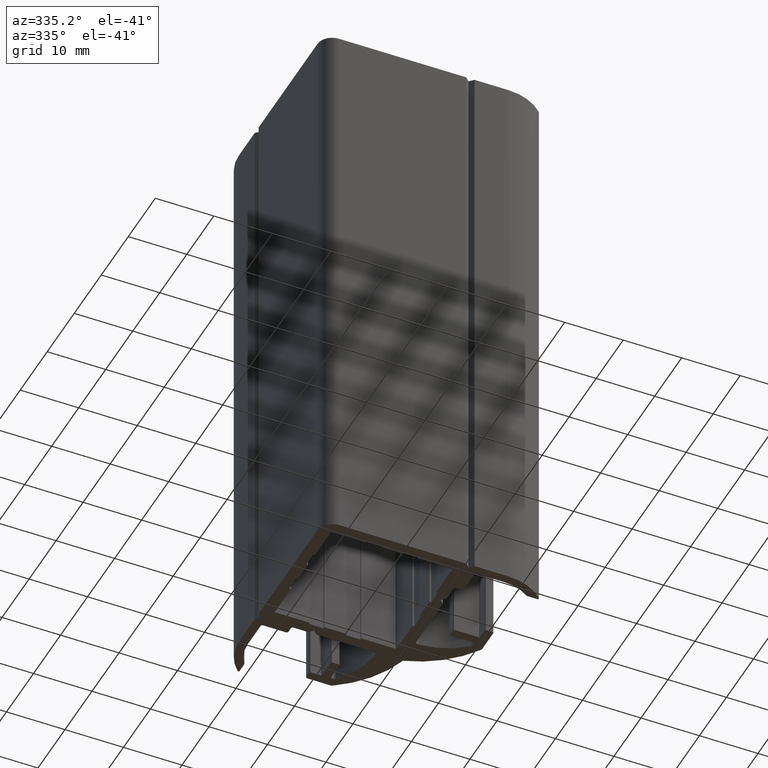
[diagram: clean part render]
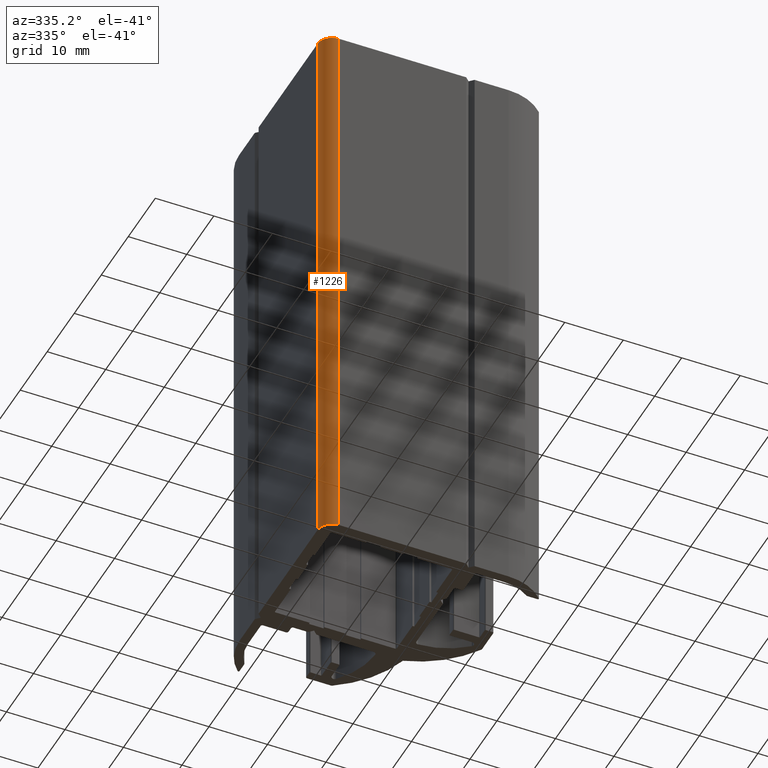
[diagram: same view with one face highlighted and labeled with its STEP entity id]
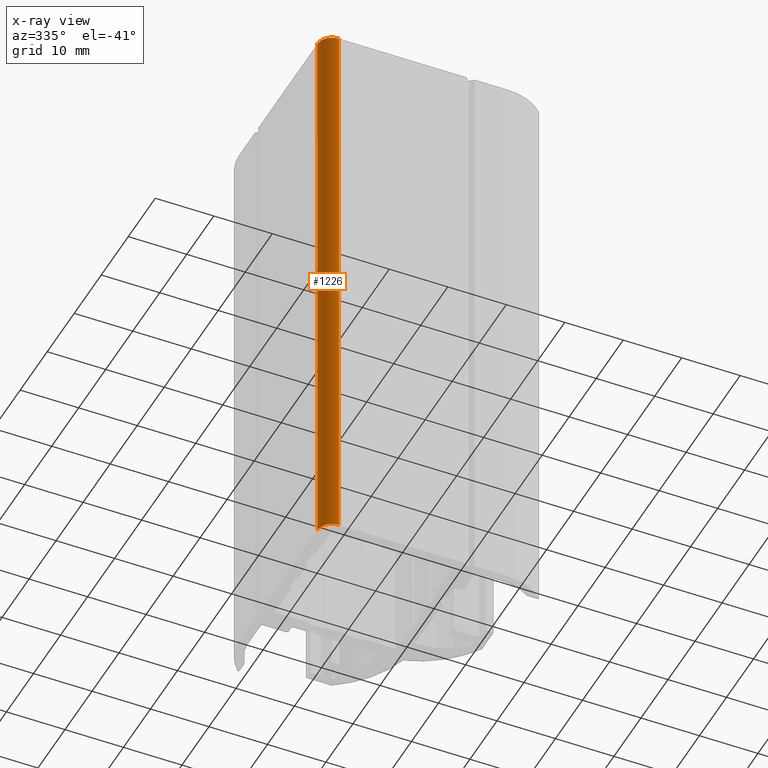
[diagram: x-ray of the same camera — body ghosted, the highlighted face saturated]
A machine part, auxiliary view. The second image highlights one B-rep face of the part: STEP entity #1226.
The next image is the same camera in x-ray: the body ghosted, the highlighted face saturated — about 0% of this face is hidden behind the body in this view.
In plain terms, the highlighted cylindrical surface (edge-blend (fillet) strip) has radius 2.5 mm, axis along (0, 0, 1).
Its self-contained STEP definition (entity closure, byte-faithful):
#1168=CARTESIAN_POINT('',(-63.396446608066981,2.499999999749889,0.0));
#1169=VERTEX_POINT('',#1168);
#1176=CARTESIAN_POINT('',(-63.396446608066981,2.499999999749889,100.0));
#1177=VERTEX_POINT('',#1176);
#1178=CARTESIAN_POINT('',(-63.396446608066981,2.499999999749889,0.0));
#1179=DIRECTION('',(0.0,0.0,1.0));
#1180=VECTOR('',#1179,100.0);
#1181=LINE('',#1178,#1180);
#1182=EDGE_CURVE('',#1169,#1177,#1181,.T.);
#1194=CARTESIAN_POINT('',(-60.896446608317092,2.499999999749889,0.0));
#1195=DIRECTION('',(0.0,0.0,1.0));
#1196=DIRECTION('',(1.0,0.0,0.0));
#1197=AXIS2_PLACEMENT_3D('',#1194,#1195,#1196);
#1198=CYLINDRICAL_SURFACE('',#1197,2.499999999749999);
#1199=CARTESIAN_POINT('',(-60.896446608317092,0.0,0.0));
#1200=VERTEX_POINT('',#1199);
#1201=CARTESIAN_POINT('',(-60.896446608317092,2.499999999749889,0.0));
#1202=DIRECTION('',(0.0,0.0,1.0));
#1203=DIRECTION('',(1.0,0.0,0.0));
#1204=AXIS2_PLACEMENT_3D('',#1201,#1202,#1203);
#1205=CIRCLE('',#1204,2.499999999749999);
#1206=EDGE_CURVE('',#1169,#1200,#1205,.T.);
#1207=ORIENTED_EDGE('',*,*,#1206,.T.);
#1208=CARTESIAN_POINT('',(-60.896446608317092,0.0,100.0));
#1209=VERTEX_POINT('',#1208);
#1210=CARTESIAN_POINT('',(-60.896446608317092,0.0,0.0));
#1211=DIRECTION('',(0.0,0.0,1.0));
#1212=VECTOR('',#1211,100.0);
#1213=LINE('',#1210,#1212);
#1214=EDGE_CURVE('',#1200,#1209,#1213,.T.);
#1215=ORIENTED_EDGE('',*,*,#1214,.T.);
#1216=CARTESIAN_POINT('',(-60.896446608317092,2.499999999749889,100.0));
#1217=DIRECTION('',(0.0,0.0,1.0));
#1218=DIRECTION('',(1.0,0.0,0.0));
#1219=AXIS2_PLACEMENT_3D('',#1216,#1217,#1218);
#1220=CIRCLE('',#1219,2.499999999749999);
#1221=EDGE_CURVE('',#1177,#1209,#1220,.T.);
#1222=ORIENTED_EDGE('',*,*,#1221,.F.);
#1223=ORIENTED_EDGE('',*,*,#1182,.F.);
#1224=EDGE_LOOP('',(#1207,#1215,#1222,#1223));
#1225=FACE_OUTER_BOUND('',#1224,.T.);
#1226=ADVANCED_FACE('',(#1225),#1198,.T.);